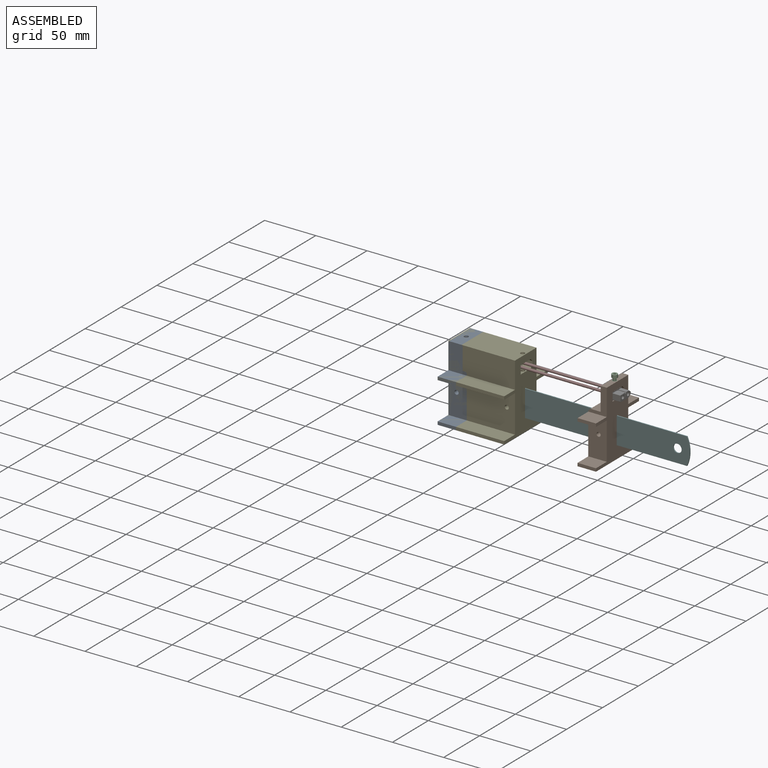
[diagram: assembled view]
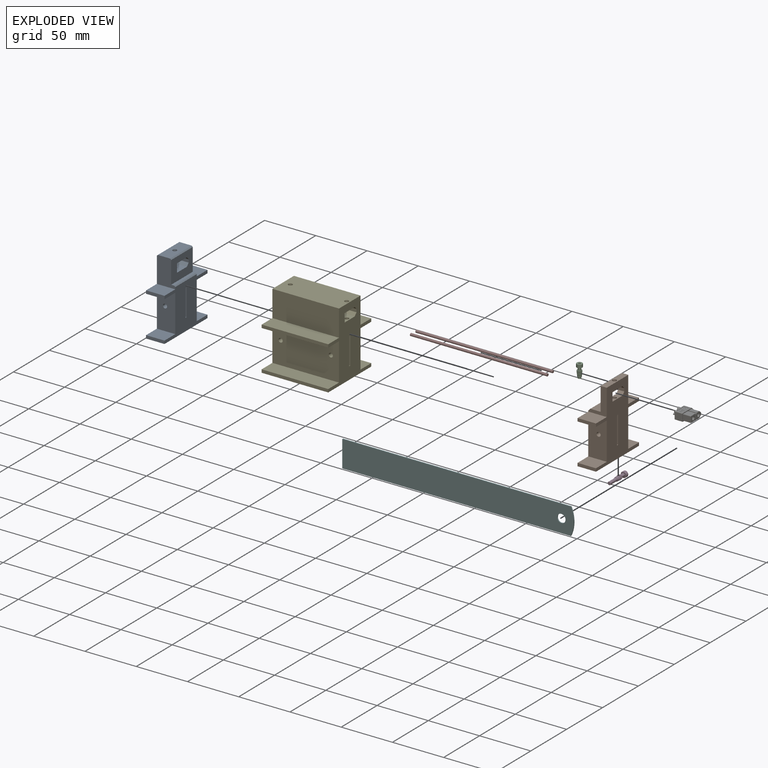
[diagram: exploded view]
GUIDED TOUR — FREECAD ASSEMBLY "outillageXT_v2_014"

This assembly has 8 components, labeled P0..P7 below (a component is one placed body or linked part; the same part can appear more than once), held together by 0 modeled joints plus 11 derived contact edges. A joint is a constraint between two components; its type names the relative motion it leaves free:
  CONTACT — a derived adjacency edge — the two components touch in the source model (clearance under 2% of the assembly's diagonal); it is measured from the geometry, not a modeled constraint.
Axis/direction vectors are unit vectors and 'through' points are millimeter coordinates, both in the assembly's world frame.

MATES
  1. CONTACT "contact_0_4": P0 <-> P4, contact direction (1.000, 0.000, 0.000) through (0.00, -15.00, 42.50) mm (derived from contact, not a modeled constraint)
  2. CONTACT "contact_0_5": P0 <-> P5, contact direction (0.000, 0.000, -1.000) through (0.00, -0.90, 38.45) mm (derived from contact, not a modeled constraint)
  3. CONTACT "contact_0_7": P0 <-> P7, contact direction (0.000, 0.000, 1.000) through (13.70, 6.32, 54.43) mm (derived from contact, not a modeled constraint)
  4. CONTACT "contact_1_2": P1 <-> P2, contact direction (0.000, 0.000, 1.000) through (151.65, 2.00, 68.30) mm (derived from contact, not a modeled constraint)
  5. CONTACT "contact_1_3": P1 <-> P3, contact direction (0.000, 0.000, -1.000) through (146.96, 15.00, 26.96) mm (derived from contact, not a modeled constraint)
  6. CONTACT "contact_1_6": P1 <-> P6, contact direction (0.000, 0.000, 1.000) through (149.60, 0.01, 53.28) mm (derived from contact, not a modeled constraint)
  7. CONTACT "contact_1_7": P1 <-> P7, contact direction (-1.000, 0.000, 0.000) through (147.81, 6.32, 54.43) mm (derived from contact, not a modeled constraint)
  8. CONTACT "contact_2_6": P2 <-> P6, contact direction (0.000, 0.000, -1.000) through (150.42, -0.82, 60.92) mm (derived from contact, not a modeled constraint)
  9. CONTACT "contact_2_7": P2 <-> P7, contact direction (0.000, 0.000, -1.000) through (148.71, -1.22, 59.68) mm (derived from contact, not a modeled constraint)
  10. CONTACT "contact_4_5": P4 <-> P5, contact direction (0.000, 0.000, -1.000) through (0.00, -0.90, 38.45) mm (derived from contact, not a modeled constraint)
  11. CONTACT "contact_6_7": P6 <-> P7, contact direction (-1.000, 0.000, 0.000) through (146.51, 5.59, 58.18) mm (derived from contact, not a modeled constraint)

ASSEMBLY ORDER
  1. P1 — the base component [order heuristic]
  2. P3 — core [order heuristic]
  3. P6 — core [order heuristic]
  4. P7 — core [order heuristic]
  5. P2 [order verified]
  6. P4 [order verified]
  7. P0 [order verified]
  8. P5 [order verified]
(P2 verified with a relaxed clearance tolerance: the source model stores slight part interference there.)
Order-tag legend:
  [order verified] — this step's position reverses a verified removal order: the component was checked to insert without passing through the ones already placed.
  [order heuristic] — the first 4 components form the assembly's core: parts whose collision-free extraction could not be verified, listed in mate-graph order.

Of the 8 components, 8 carry a construction recipe — the FreeCAD feature program (sketches with constraints, then the solid features that consume them) that regenerates the part from scratch, quoted from this document or from the linked companion document it references; the rest are supplied as boundary geometry only. The tour below walks the components in assembly order: each is shown spotlighted twice — in the assembled view, then in the exploded view, where a leader line traces a displaced component back to its assembled socket (components that stay in place when exploded have no leader line; saturated green if recipe-attached, orange if geometry-only; every other component desaturated gray) — followed by its recipe or geometry summary and the mates that hold it.
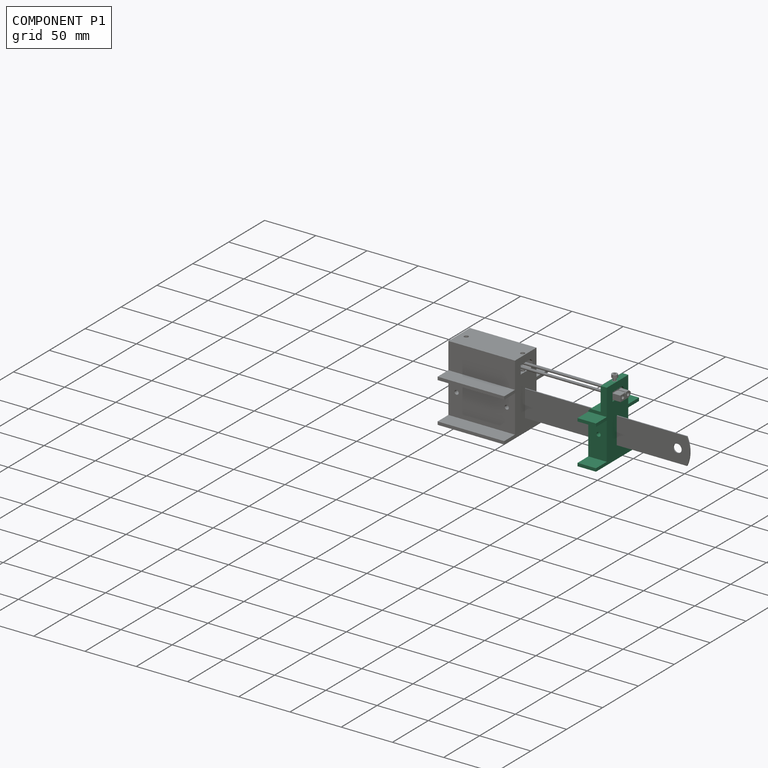
[diagram: component P1 — assembled]
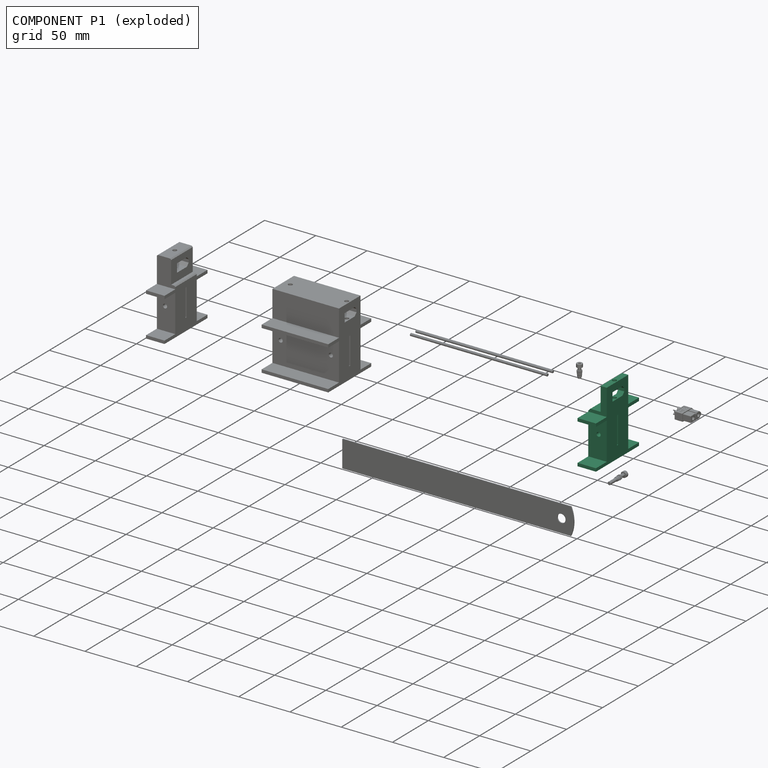
[diagram: component P1 — exploded]
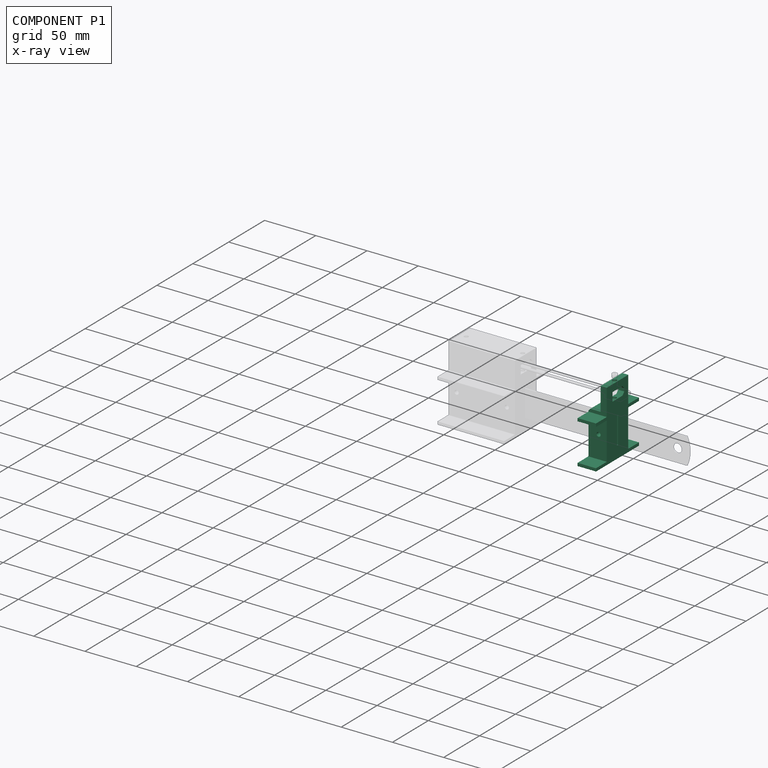
[diagram: component P1 — x-ray view]
COMPONENT P1 — recipe-attached ("outillageMale", modeled in this document).
Held by: resting contact with P2 (derived edge); resting contact with P3 (derived edge); resting contact with P6 (derived edge); resting contact with P7 (derived edge).
Construction recipe (the document's own serialized feature program — sketch geometry with constraints, then the solid features built on it; lengths are millimeters unless a unit is written):

FEATURE [PartDesign::FeatureBase] Clone001
  BaseFeature = -> Slice_child2
FEATURE [PartDesign::Chamfer] Chamfer002
  Angle = 45
  Base = -> Clone001 [Edge5]
  BaseFeature = -> Clone001
  ChamferType = 0
  FlipDirection = false
  Size = 2
  Size2 = 1
  SupportTransform = false
FEATURE [PartDesign::Body] Body005  label="outillageMale"
  BaseFeature = -> Slice_child2
  Group = -> [Clone001,Chamfer002]
  Origin = -> Origin010
  Placement = pos=(89.6,0,0) rot=(0,0,1;0rad)
  Tip = -> Chamfer002
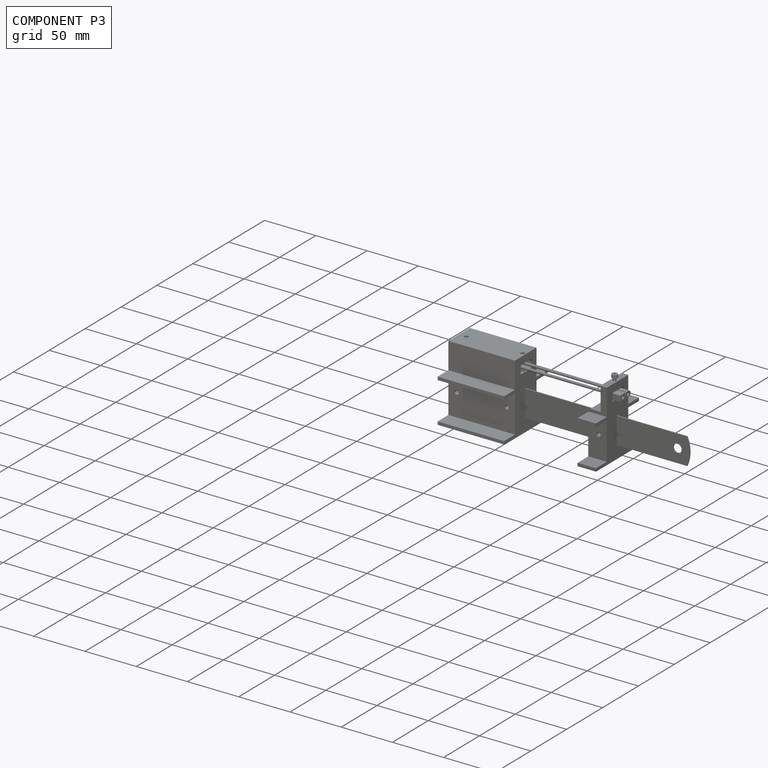
[diagram: component P3 — assembled]
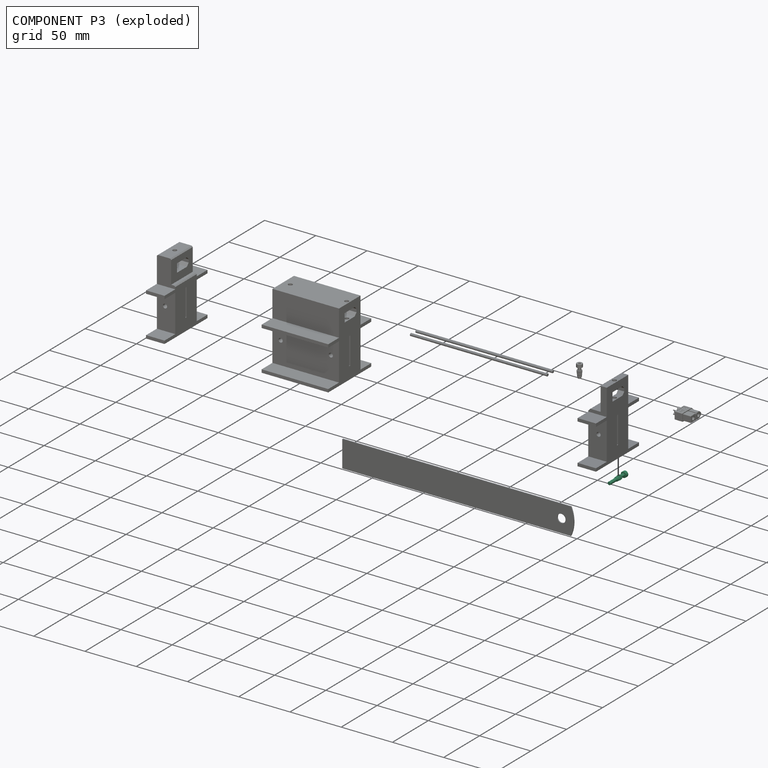
[diagram: component P3 — exploded]
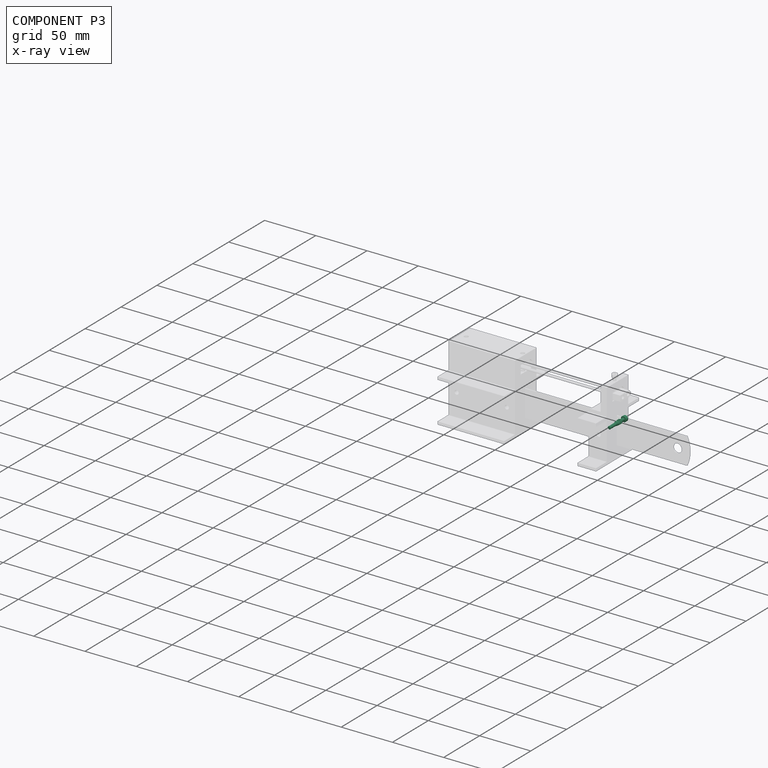
[diagram: component P3 — x-ray view]
COMPONENT P3 — recipe-attached ("visM2x20Insert001", modeled in this document).
Held by: resting contact with P1 (derived edge).
Construction recipe (the document's own serialized feature program — sketch geometry with constraints, then the solid features built on it; lengths are millimeters unless a unit is written):

FEATURE [Sketcher::SketchObject] Sketch006
  FullyConstrained = false
  MapMode = 5
  Support = -> [XY_Plane010]
  sketch-geometry (1):
    g0: Circle CenterX=0 CenterY=0 CenterZ=0 NormalX=0 NormalY=0 NormalZ=1 AngleXU=0 Radius=2.75
  constraints (2):
    c: Coincident(g0,g-1)
    c: Diameter(g0) = 5.5
FEATURE [PartDesign::Pad] Pad003  label="tete"
  AllowMultiFace = false
  Direction = (1,1,1)
  Length = 3
  Length2 = 100
  Profile = -> Sketch006
  Type = 0
FEATURE [Sketcher::SketchObject] Sketch007
  FullyConstrained = false
  MapMode = 5
  Placement = pos=(0,0,0) rot=(1,0,0;3.14159rad)
  Support = -> [Pad003]
  sketch-geometry (1):
    g0: Circle CenterX=0 CenterY=0 CenterZ=0 NormalX=0 NormalY=0 NormalZ=1 AngleXU=0 Radius=1.5
  constraints (2):
    c: Coincident(g0,g-1)
    c: Diameter(g0) = 3
FEATURE [PartDesign::Pad] Pad004  label="corps"
  AllowMultiFace = false
  BaseFeature = -> Pad003
  Direction = (1,1,1)
  Length = 20
  Length2 = 100
  Profile = -> Sketch007
  Type = 0
FEATURE [PartDesign::Plane] DatumPlane003  label="DatumPlane"
  AttachmentOffset = pos=(0,0,3) rot=(0,0,1;0rad)
  Length = 60
  MapMode = 5
  Placement = pos=(0,0,3) rot=(0,0,1;0rad)
  ResizeMode = 0
  Support = -> [XY_Plane010]
  Width = 60
FEATURE [Sketcher::SketchObject] Sketch008
  FullyConstrained = false
  MapMode = 5
  Placement = pos=(0,0,3) rot=(0,0,1;0rad)
  Support = -> [DatumPlane003]
  sketch-geometry (7):
    g0: LineSegment StartX=0.721688 StartY=-1.25 StartZ=0 EndX=1.44338 EndY=1.0119e-12 EndZ=0
    g1: LineSegment StartX=1.44338 StartY=1.0119e-12 StartZ=0 EndX=0.721688 EndY=1.25 EndZ=0
    g2: LineSegment StartX=0.721688 StartY=1.25 StartZ=0 EndX=-0.721688 EndY=1.25 EndZ=0
    g3: LineSegment StartX=-0.721688 StartY=1.25 StartZ=0 EndX=-1.44338 EndY=8.689e-13 EndZ=0
    g4: LineSegment StartX=-1.44338 StartY=8.689e-13 StartZ=0 EndX=-0.721688 EndY=-1.25 EndZ=0
    g5: LineSegment StartX=-0.721688 StartY=-1.25 StartZ=0 EndX=0.721688 EndY=-1.25 EndZ=0
    g6: Circle CenterX=0 CenterY=0 CenterZ=0 NormalX=0 NormalY=0 NormalZ=1 AngleXU=0 Radius=1.44338
  constraints (16):
    c: Coincident(g0,g1)
    c: Coincident(g1,g2)
    c: Coincident(g2,g3)
    c: Coincident(g3,g4)
    c: Coincident(g4,g5)
    c: Coincident(g5,g0)
    c: Equal(g0, g1-g5) x5
    c: PointOnObject(g0,g6)
    c: PointOnObject(g1,g6)
    c: PointOnObject(g2,g6)
    c: PointOnObject(g3,g6)
    c: PointOnObject(g4,g6)
    c: PointOnObject(g5,g6)
    c: Coincident(g6,g-1)
    c: Horizontal(g2)
    c: DistanceY(g0,g1) = 2.5
FEATURE [PartDesign::Pocket] Pocket002  label="emprunte"
  AllowMultiFace = false
  BaseFeature = -> Pad004
  Length = 4
  Length2 = 100
  Profile = -> Sketch008
  Type = 0
FEATURE [PartDesign::Chamfer] Chamfer004
  Angle = 45
  Base = -> Pocket002 [Edge12,Edge2,Edge3]
  BaseFeature = -> Pocket002
  ChamferType = 0
  FlipDirection = false
  Size = 0.2
  Size2 = 1
  SupportTransform = false
FEATURE [PartDesign::Body] Body006  label="visTHCM3x20_001"
  Group = -> [Sketch006,Pad003,Sketch007,Pad004,DatumPlane003,Sketch008,Pocket002,Chamfer004]
  Origin = -> Origin011
  Tip = -> Chamfer004
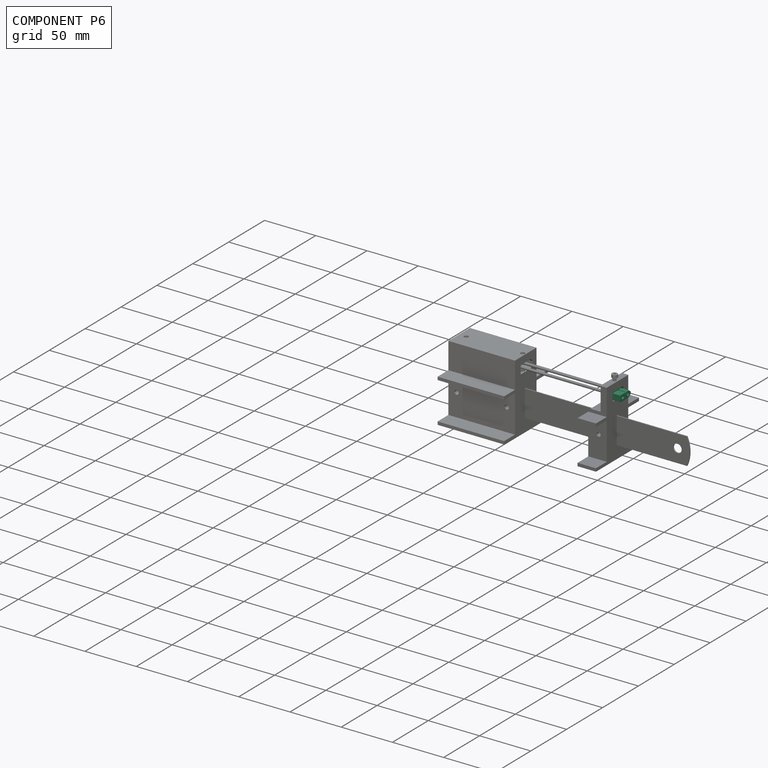
[diagram: component P6 — assembled]
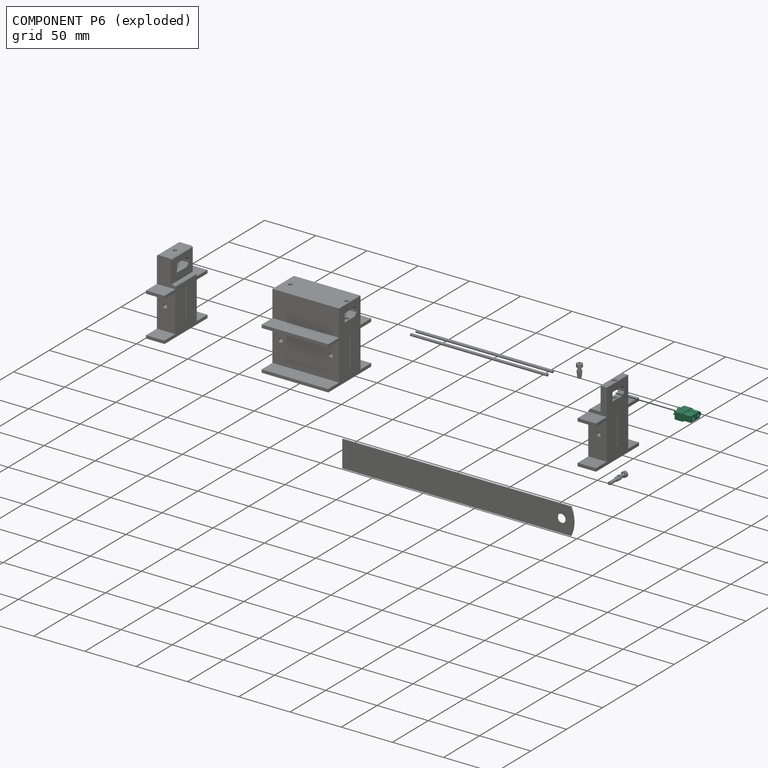
[diagram: component P6 — exploded]
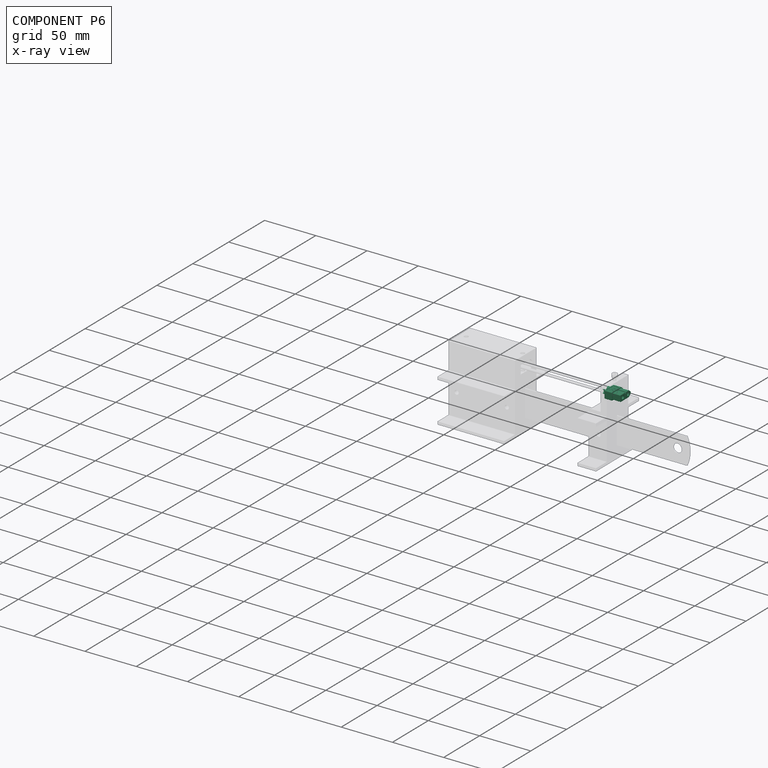
[diagram: component P6 — x-ray view]
COMPONENT P6 — recipe-attached ("xt", modeled in this document).
Held by: resting contact with P1 (derived edge); resting contact with P2 (derived edge); resting contact with P7 (derived edge).
Construction recipe (the document's own serialized feature program — sketch geometry with constraints, then the solid features built on it; lengths are millimeters unless a unit is written):

FEATURE [Sketcher::SketchObject] Sketch001
  FullyConstrained = true
  MapMode = 5
  Placement = pos=(0,0,0) rot=(1,0,0;1.5708rad)
  Support = -> [XZ_Plane005]
  expr: Constraints[16] = <<xtSp>>.fetierLarg
  expr: Constraints[17] = <<xtSp>>.toitHaut
  expr: Constraints[14] = <<xtSp>>.haut
  expr: Constraints[13] = <<xtSp>>.base
  sketch-geometry (7):
    g0: LineSegment StartX=-4.15 StartY=0 StartZ=0 EndX=-4.15 EndY=13.25 EndZ=0
    g1: LineSegment StartX=-4.15 StartY=13.25 StartZ=0 EndX=-1.5 EndY=15.75 EndZ=0
    g2: LineSegment StartX=-1.5 StartY=15.75 StartZ=0 EndX=1.5 EndY=15.75 EndZ=0
    g3: LineSegment StartX=1.5 StartY=15.75 StartZ=0 EndX=4.15 EndY=13.25 EndZ=0
    g4: LineSegment StartX=4.15 StartY=13.25 StartZ=0 EndX=4.15 EndY=0 EndZ=0
    g5: LineSegment StartX=4.15 StartY=0 StartZ=0 EndX=-4.15 EndY=0 EndZ=0
    g6: LineSegment StartX=-4.15 StartY=13.25 StartZ=0 EndX=4.15 EndY=13.25 EndZ=0
  constraints (18):
    c: PointOnObject(g0,g-1)
    c: Vertical(g0)
    c: Coincident(g0,g1)
    c: Coincident(g1,g2)
    c: Coincident(g2,g3)
    c: Coincident(g3,g4)
    c: Vertical(g4)
    c: Coincident(g4,g5)
    c: Coincident(g5,g0)
    c: Symmetric(g0,g4,g-2)
    c: Coincident(g6,g0)
    c: Coincident(g6,g3)
    c: Horizontal(g6)
    c: DistanceX(g5,g5) = 8.3
    c: DistanceY(g4,g4) = 13.25
    c: Symmetric(g1,g2,g-2)
    c: DistanceX(g2,g2) = 3
    c: DistanceY(g0,g1) = 2.5
FEATURE [PartDesign::Body] Body002
  Group = -> [Sketch001]
  Origin = -> Origin005
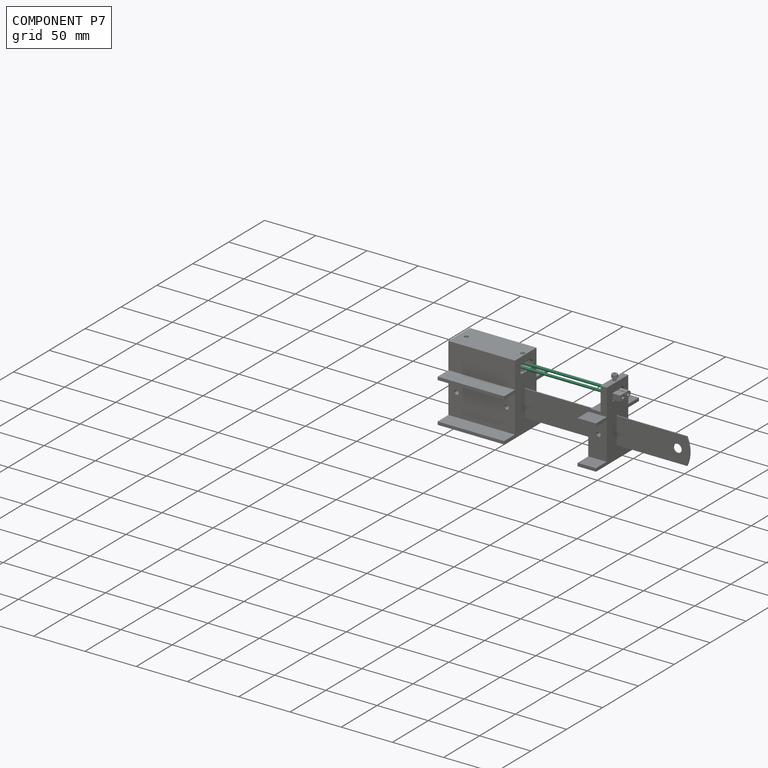
[diagram: component P7 — assembled]
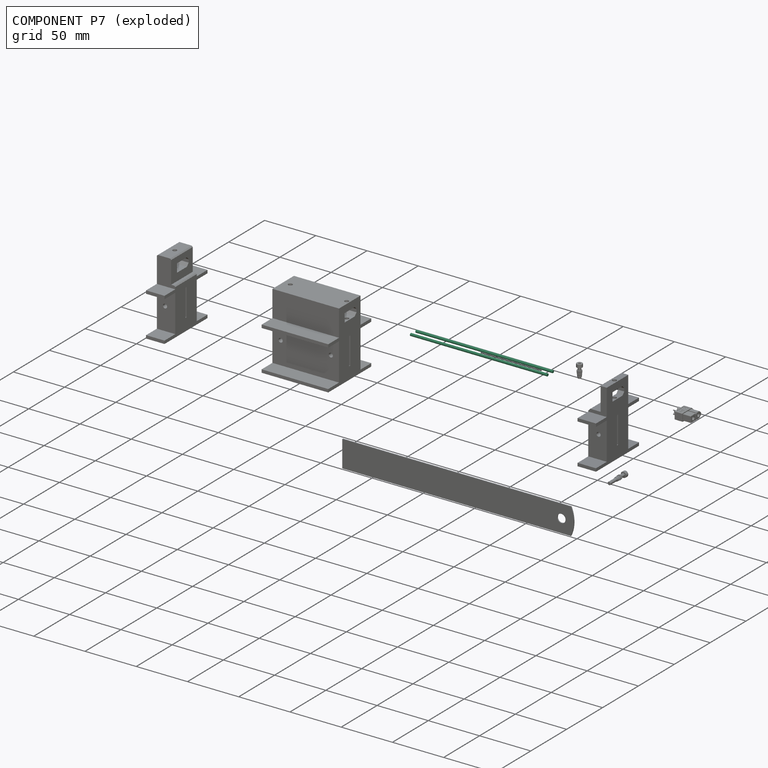
[diagram: component P7 — exploded]
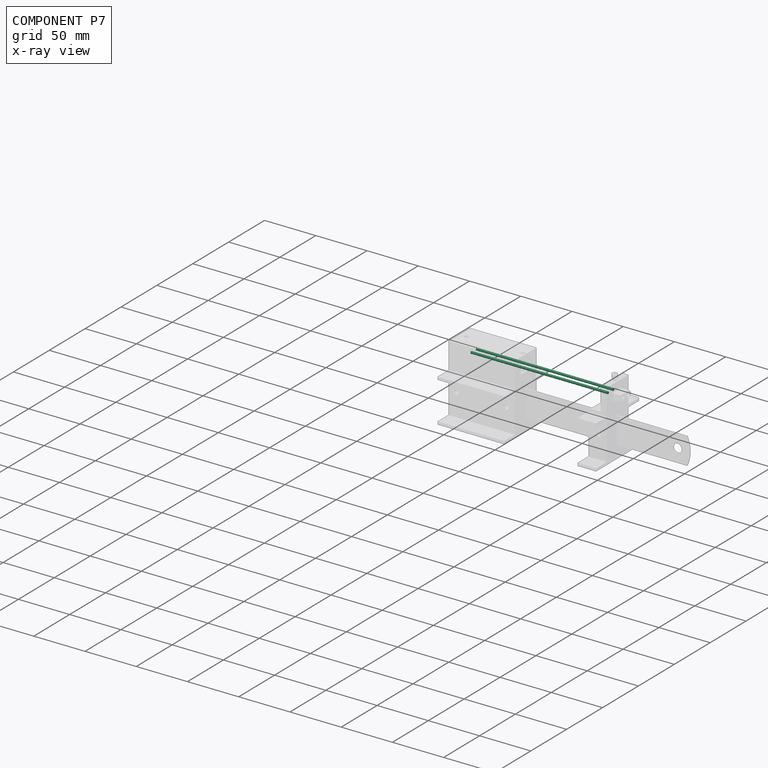
[diagram: component P7 — x-ray view]
COMPONENT P7 — recipe-attached ("tigeLaiton001", modeled in this document).
Held by: resting contact with P0 (derived edge); resting contact with P1 (derived edge); resting contact with P2 (derived edge); resting contact with P6 (derived edge).
Construction recipe (the document's own serialized feature program — sketch geometry with constraints, then the solid features built on it; lengths are millimeters unless a unit is written):

FEATURE [PartDesign::Plane] DatumPlane012  label="planBaseTige"
  AttachmentOffset = pos=(0,0,-5.18) rot=(0,0,1;0rad)
  Length = 60
  MapMode = 5
  Placement = pos=(-5.18,1.2e-15,-1.2e-15) rot=(0.57735,0.57735,0.57735;2.0944rad)
  ResizeMode = 0
  Support = -> [YZ_Plane015]
  Width = 60
  expr: .AttachmentOffset.Base.z = -<<tige>>.planBaseTigeposX
FEATURE [Sketcher::SketchObject] Sketch032  label="sk_tiges"
  FullyConstrained = true
  MapMode = 5
  Placement = pos=(-5.18,1.2e-15,-1.2e-15) rot=(0.57735,0.57735,0.57735;2.0944rad)
  Support = -> [DatumPlane012]
  expr: Constraints[2] = <<tige>>.tigePosX
  expr: Constraints[1] = <<tige>>.tigePosY
  expr: Constraints[0] = <<tige>>.tigeDiam
  sketch-geometry (1):
    g0: Circle CenterX=-14 CenterY=14.3 CenterZ=0 NormalX=0 NormalY=0 NormalZ=1 AngleXU=0 Radius=1.25
  constraints (3):
    c: Diameter(g0) = 2.5
    c: DistanceY(g-1,g0) = 14.3
    c: DistanceX(g0,g-1) = 14
FEATURE [PartDesign::Pad] Pad017  label="tigeBasse"
  AllowMultiFace = false
  Direction = (1,1,1)
  Length = 133.62
  Length2 = 100
  Placement = pos=(-5.18,1e-15,-1e-15) rot=(0.57735,0.57735,0.57735;2.0944rad)
  Profile = -> Sketch032
  Reversed = true
  Type = 0
  expr: Length = <<tige>>.tigeLong
FEATURE [PartDesign::Body] Body007  label="tigeLaiton"
  Group = -> [DatumPlane012,Sketch032,Pad017]
  Origin = -> Origin018
  Tip = -> Pad017
FEATURE [PartDesign::Plane] DatumPlane013  label="planTige2"
  AttachmentOffset = pos=(0,0,-5.18) rot=(0,0,1;0rad)
  Length = 60
  MapMode = 5
  Placement = pos=(-5.18,1.2e-15,-1.2e-15) rot=(0.57735,0.57735,0.57735;2.0944rad)
  ResizeMode = 0
  Support = -> [YZ_Plane017]
  Width = 60
  expr: .AttachmentOffset.Base.z = -<<tige>>.planBaseTigeposX
FEATURE [Sketcher::SketchObject] Sketch033  label="sk_tige2"
  FullyConstrained = true
  MapMode = 5
  Placement = pos=(-5.18,1.2e-15,-1.2e-15) rot=(0.57735,0.57735,0.57735;2.0944rad)
  Support = -> [DatumPlane013]
  expr: Constraints[2] = <<tige>>.tigePosY + <<tige>>.xtEcartBroches
  expr: Constraints[1] = <<tige>>.tigePosX
  expr: Constraints[0] = <<tige>>.tigeDiam
  sketch-geometry (1):
    g0: Circle CenterX=-14 CenterY=21.86 CenterZ=0 NormalX=0 NormalY=0 NormalZ=1 AngleXU=0 Radius=1.25
  constraints (3):
    c: Diameter(g0) = 2.5
    c: DistanceX(g0,g-1) = 14
    c: DistanceY(g-1,g0) = 21.86
FEATURE [PartDesign::Pad] Pad018
  AllowMultiFace = false
  Direction = (1,1,1)
  Length = 133.62
  Length2 = 100
  Placement = pos=(-5.18,1e-15,-1e-15) rot=(0.57735,0.57735,0.57735;2.0944rad)
  Profile = -> Sketch033
  Reversed = true
  Type = 0
  expr: Length = <<tige>>.tigeLong
FEATURE [PartDesign::Body] Body009  label="tige2"
  Group = -> [DatumPlane013,Sketch033,Pad018]
  Origin = -> Origin020
  Tip = -> Pad018
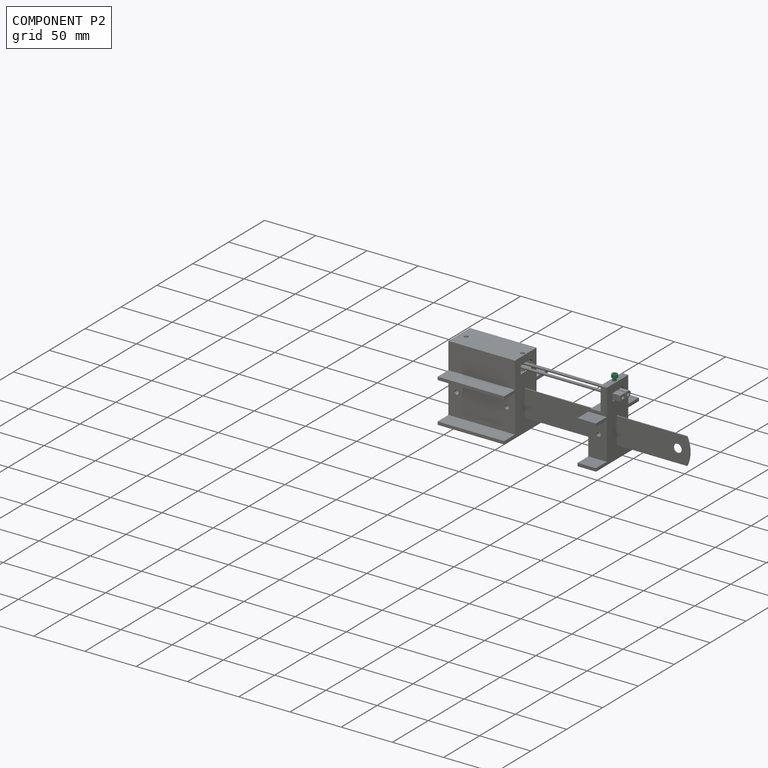
[diagram: component P2 — assembled]
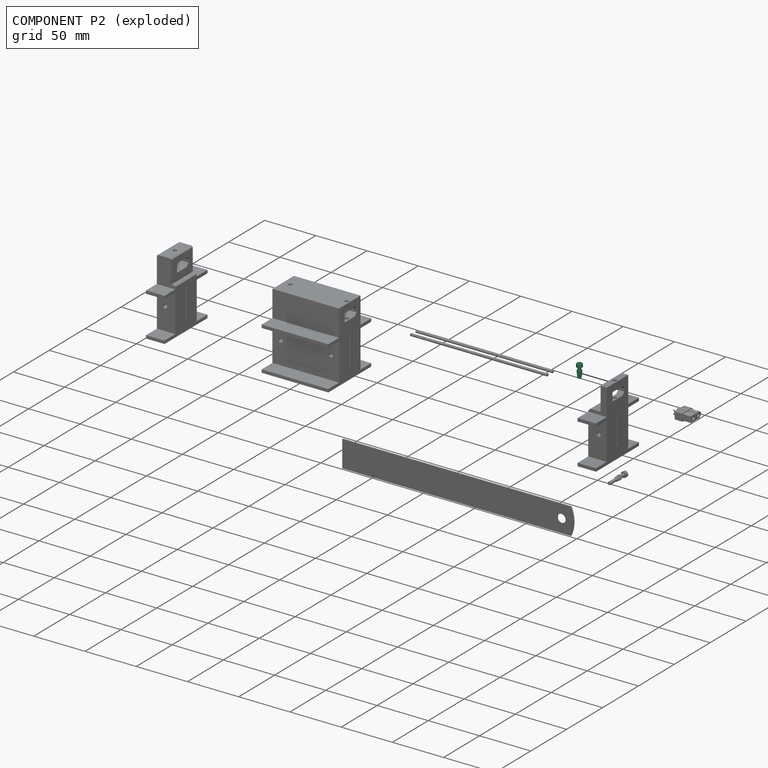
[diagram: component P2 — exploded]
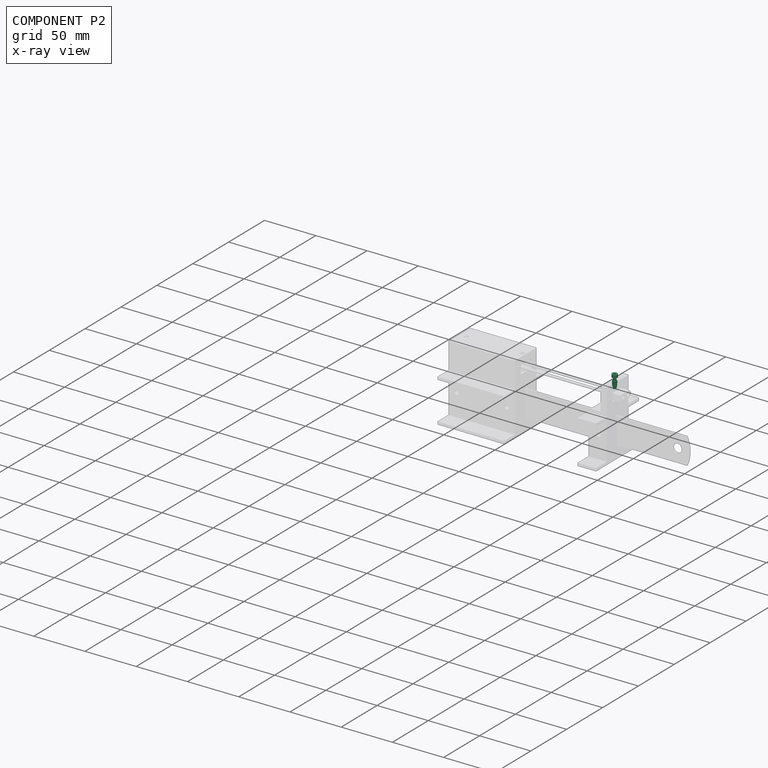
[diagram: component P2 — x-ray view]
COMPONENT P2 — recipe-attached ("visM3x10Insert__002", modeled in this document).
Held by: resting contact with P1 (derived edge); resting contact with P6 (derived edge); resting contact with P7 (derived edge).
Construction recipe (the document's own serialized feature program — sketch geometry with constraints, then the solid features built on it; lengths are millimeters unless a unit is written):

FEATURE [Sketcher::SketchObject] Sketch012
  FullyConstrained = false
  MapMode = 5
  Support = -> [XY_Plane013]
  sketch-geometry (1):
    g0: Circle CenterX=0 CenterY=0 CenterZ=0 NormalX=0 NormalY=0 NormalZ=1 AngleXU=0 Radius=2.75
  constraints (2):
    c: Coincident(g0,g-1)
    c: Diameter(g0) = 5.5
FEATURE [PartDesign::Pad] Pad007  label="tete002"
  AllowMultiFace = false
  Direction = (1,1,1)
  Length = 3
  Length2 = 100
  Profile = -> Sketch012
  Type = 0
FEATURE [Sketcher::SketchObject] Sketch013
  FullyConstrained = false
  MapMode = 5
  Placement = pos=(0,0,0) rot=(1,0,0;3.14159rad)
  Support = -> [Pad007]
  sketch-geometry (1):
    g0: Circle CenterX=0 CenterY=0 CenterZ=0 NormalX=0 NormalY=0 NormalZ=1 AngleXU=0 Radius=1.5
  constraints (2):
    c: Coincident(g0,g-1)
    c: Diameter(g0) = 3
FEATURE [PartDesign::Pad] Pad008  label="corps002"
  AllowMultiFace = false
  BaseFeature = -> Pad007
  Direction = (1,1,1)
  Length = 10
  Length2 = 100
  Profile = -> Sketch013
  Type = 0
FEATURE [PartDesign::Plane] DatumPlane005
  AttachmentOffset = pos=(0,0,3) rot=(0,0,1;0rad)
  Length = 60
  MapMode = 5
  Placement = pos=(0,0,3) rot=(0,0,1;0rad)
  ResizeMode = 0
  Support = -> [XY_Plane013]
  Width = 60
FEATURE [Sketcher::SketchObject] Sketch014
  FullyConstrained = false
  MapMode = 5
  Placement = pos=(0,0,3) rot=(0,0,1;0rad)
  Support = -> [DatumPlane005]
  sketch-geometry (7):
    g0: LineSegment StartX=0.721688 StartY=-1.25 StartZ=0 EndX=1.44338 EndY=1.0119e-12 EndZ=0
    g1: LineSegment StartX=1.44338 StartY=1.0119e-12 StartZ=0 EndX=0.721688 EndY=1.25 EndZ=0
    g2: LineSegment StartX=0.721688 StartY=1.25 StartZ=0 EndX=-0.721688 EndY=1.25 EndZ=0
    g3: LineSegment StartX=-0.721688 StartY=1.25 StartZ=0 EndX=-1.44338 EndY=8.689e-13 EndZ=0
    g4: LineSegment StartX=-1.44338 StartY=8.689e-13 StartZ=0 EndX=-0.721688 EndY=-1.25 EndZ=0
    g5: LineSegment StartX=-0.721688 StartY=-1.25 StartZ=0 EndX=0.721688 EndY=-1.25 EndZ=0
    g6: Circle CenterX=0 CenterY=0 CenterZ=0 NormalX=0 NormalY=0 NormalZ=1 AngleXU=0 Radius=1.44338
  constraints (16):
    c: Coincident(g0,g1)
    c: Coincident(g1,g2)
    c: Coincident(g2,g3)
    c: Coincident(g3,g4)
    c: Coincident(g4,g5)
    c: Coincident(g5,g0)
    c: Equal(g0, g1-g5) x5
    c: PointOnObject(g0,g6)
    c: PointOnObject(g1,g6)
    c: PointOnObject(g2,g6)
    c: PointOnObject(g3,g6)
    c: PointOnObject(g4,g6)
    c: PointOnObject(g5,g6)
    c: Coincident(g6,g-1)
    c: Horizontal(g2)
    c: DistanceY(g0,g1) = 2.5
FEATURE [PartDesign::Pocket] Pocket004  label="emprunte002"
  AllowMultiFace = false
  BaseFeature = -> Pad008
  Length = 4
  Length2 = 100
  Profile = -> Sketch014
  Type = 0
FEATURE [PartDesign::Body] Body008  label="visTHCM3x10"
  Group = -> [Sketch012,Pad007,Sketch013,Pad008,DatumPlane005,Sketch014,Pocket004]
  Origin = -> Origin015
  Tip = -> Pocket004
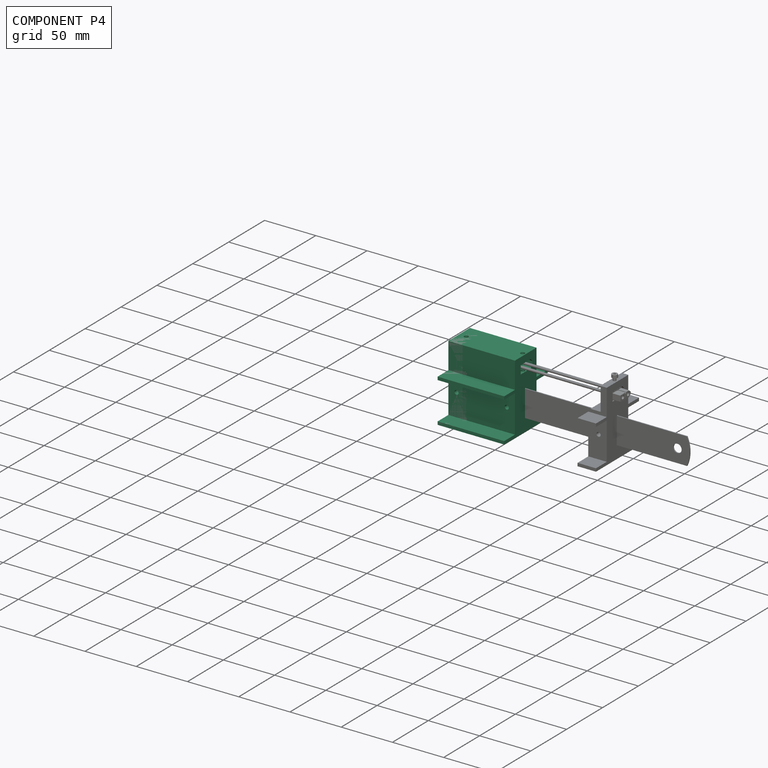
[diagram: component P4 — assembled]
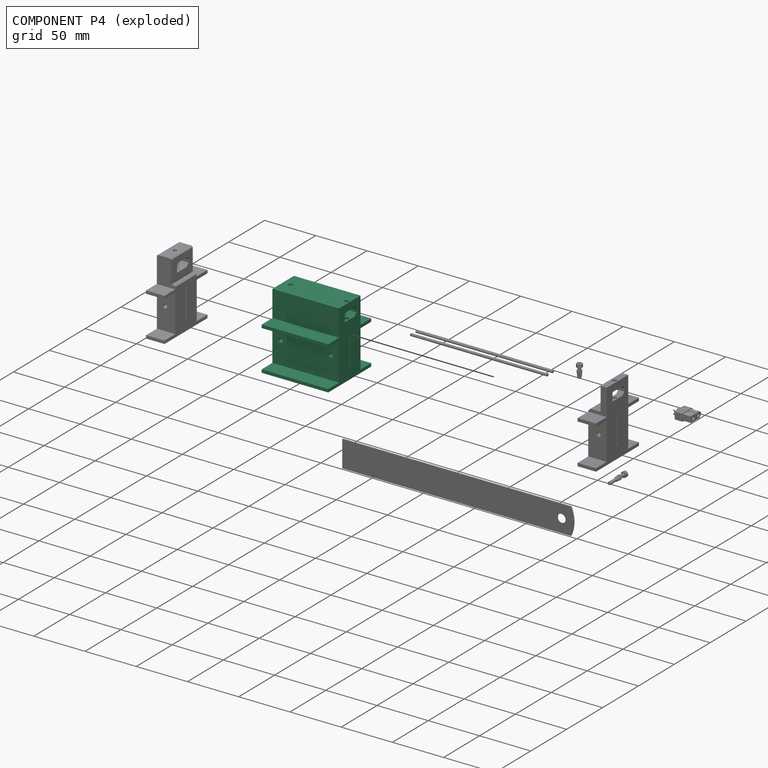
[diagram: component P4 — exploded]
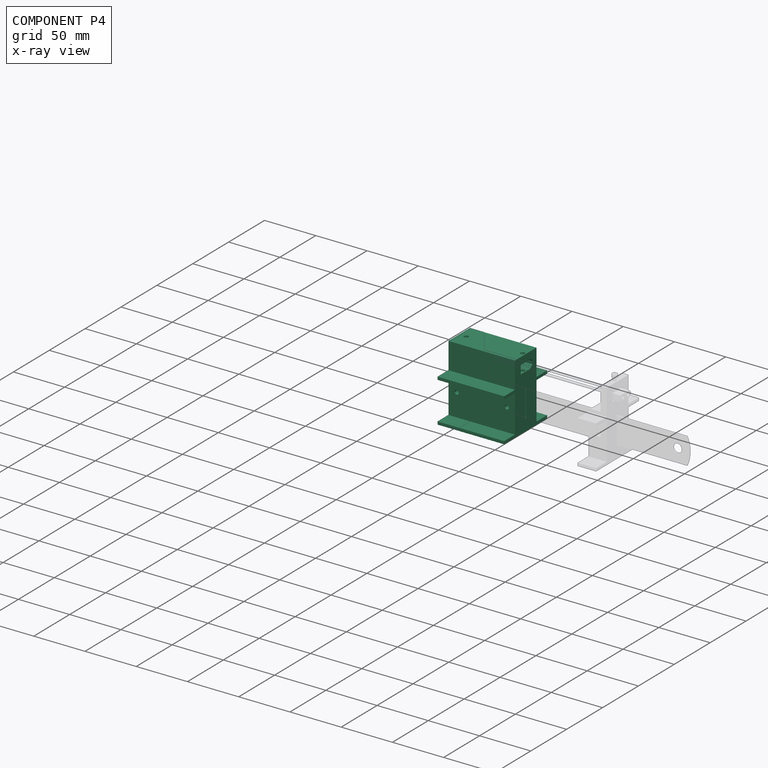
[diagram: component P4 — x-ray view]
COMPONENT P4 — recipe-attached ("outillageXt", modeled in this document).
Held by: resting contact with P0 (derived edge); resting contact with P5 (derived edge).
Construction recipe (the document's own serialized feature program — sketch geometry with constraints, then the solid features built on it; lengths are millimeters unless a unit is written):

FEATURE [Sketcher::SketchObject] Sketch002
  FullyConstrained = true
  MapMode = 5
  Placement = pos=(0,0,0) rot=(0.57735,0.57735,0.57735;2.0944rad)
  Support = -> [YZ_Plane]
  expr: Constraints[19] = <<outillageXtSp>>.ep
  expr: Constraints[21] = <<outillageXtSp>>.piedEp
  expr: Constraints[30] = <<regletSp>>.ep + <<outillageXtSp>>.jeuFonct
  expr: Constraints[31] = <<outillageXtSp>>.reglettePosVert
  expr: Constraints[44] = <<xtSp>>.base
  expr: Constraints[48] = <<xtSp>>.fetierLarg
  expr: Constraints[52] = <<outillageXtSp>>.xtPosVert
  expr: Constraints[46] = <<xtSp>>.haut + <<outillageXtSp>>.jeuFonct
  expr: Constraints[70] = <<outillageXtSp>>.piedEp
  expr: Constraints[29] = <<regletSp>>.larg + <<outillageXtSp>>.jeuFonct
  expr: Constraints[47] = <<xtSp>>.toitHaut
  expr: Constraints[20] = <<outillageXtSp>>.piedLong
  expr: Constraints[33] = <<outillageXtSp>>.hauteurTotale
  expr: Constraints[71] = <<outillageXtSp>>.reglettePosVert + <<regletSp>>.larg + <<outillageXtSp>>.xtRegletDist / 2 - 3
  sketch-geometry (28):
    g0: LineSegment StartX=30 StartY=0 StartZ=0 EndX=-30 EndY=0 EndZ=0
    g1: LineSegment StartX=-30 StartY=0 StartZ=0 EndX=-30 EndY=3 EndZ=0
    g2: LineSegment StartX=-30 StartY=3 StartZ=0 EndX=-15 EndY=3 EndZ=0
    g3: LineSegment StartX=-15 StartY=3 StartZ=0 EndX=-15 EndY=39.5 EndZ=0
    g4: LineSegment StartX=30 StartY=0 StartZ=0 EndX=30 EndY=3 EndZ=0
    g5: LineSegment StartX=30 StartY=3 StartZ=0 EndX=15 EndY=3 EndZ=0
    g6: LineSegment StartX=15 StartY=3 StartZ=0 EndX=15 EndY=39.5 EndZ=0
    g7: LineSegment StartX=-15 StartY=68.3 StartZ=0 EndX=15 EndY=68.3 EndZ=0
    g8: LineSegment StartX=0.8 StartY=38.6 StartZ=0 EndX=-0.8 EndY=38.6 EndZ=0
    g9: LineSegment StartX=-0.8 StartY=38.6 StartZ=0 EndX=-0.8 EndY=12 EndZ=0
    g10: LineSegment StartX=-0.8 StartY=12 StartZ=0 EndX=0.8 EndY=12 EndZ=0
    g11: LineSegment StartX=0.8 StartY=12 StartZ=0 EndX=0.8 EndY=38.6 EndZ=0
    g12: LineSegment StartX=-6.925 StartY=53 StartZ=0 EndX=6.925 EndY=53 EndZ=0
    g13: LineSegment StartX=6.925 StartY=53 StartZ=0 EndX=9.425 EndY=55.65 EndZ=0
    g14: LineSegment StartX=9.425 StartY=55.65 StartZ=0 EndX=9.425 EndY=58.65 EndZ=0
    g15: LineSegment StartX=9.425 StartY=58.65 StartZ=0 EndX=6.925 EndY=61.3 EndZ=0
    g16: LineSegment StartX=6.925 StartY=61.3 StartZ=0 EndX=-6.925 EndY=61.3 EndZ=0
    g17: LineSegment StartX=-6.925 StartY=61.3 StartZ=0 EndX=-6.925 EndY=53 EndZ=0
    g18: LineSegment StartX=0 StartY=0 StartZ=0 EndX=0 EndY=53 EndZ=0
    g19: LineSegment StartX=-6.925 StartY=57.15 StartZ=0 EndX=9.425 EndY=57.15 EndZ=0
    g20: LineSegment StartX=-15 StartY=42.5 StartZ=0 EndX=-30 EndY=42.5 EndZ=0
    g21: LineSegment StartX=-30 StartY=42.5 StartZ=0 EndX=-30 EndY=39.5 EndZ=0
    g22: LineSegment StartX=-30 StartY=39.5 StartZ=0 EndX=-15 EndY=39.5 EndZ=0
    g23: LineSegment StartX=15 StartY=42.5 StartZ=0 EndX=30 EndY=42.5 EndZ=0
    g24: LineSegment StartX=30 StartY=42.5 StartZ=0 EndX=30 EndY=39.5 EndZ=0
    g25: LineSegment StartX=30 StartY=39.5 StartZ=0 EndX=15 EndY=39.5 EndZ=0
    g26: LineSegment StartX=15 StartY=42.5 StartZ=0 EndX=15 EndY=68.3 EndZ=0
    g27: LineSegment StartX=-15 StartY=42.5 StartZ=0 EndX=-15 EndY=68.3 EndZ=0
  constraints (78):
    c: PointOnObject(g0,g-1)
    c: PointOnObject(g0,g-1)
    c: Coincident(g0,g1)
    c: Vertical(g1)
    c: Coincident(g1,g2)
    c: Horizontal(g2)
    c: Coincident(g2,g3)
    c: Vertical(g3)
    c: Coincident(g0,g4)
    c: Coincident(g4,g5)
    c: Horizontal(g5)
    c: Coincident(g5,g6)
    c: Vertical(g6)
    c: Symmetric(g2,g5,g-2)
    c: Vertical(g4)
    c: Equal(g2,g5)
    c: Coincident(g7,g27)
    c: Coincident(g7,g26)
    c: Horizontal(g7)
    c: DistanceX(g2,g5) = 30
    c: DistanceX(g2,g2) = 15
    c: DistanceY(g1,g1) = 3
    c: Coincident(g8,g9)
    c: Coincident(g9,g10)
    c: Coincident(g10,g11)
    c: Coincident(g11,g8)
    c: Horizontal(g10)
    c: Vertical(g9)
    c: Vertical(g11)
    c: DistanceY(g9,g9) = 26.6
    c: DistanceX(g10,g10) = 1.6
    c: DistanceY(g-1,g10) = 12
    c: Symmetric(g8,g8,g-2)
    c: DistanceY(g-1,g26) = 68.3
    c: Horizontal(g12)
    c: Coincident(g12,g13)
    c: Coincident(g13,g14)
    c: Vertical(g14)
    c: Coincident(g14,g15)
    c: Coincident(g15,g16)
    c: Horizontal(g16)
    c: Coincident(g16,g17)
    c: Coincident(g17,g12)
    c: Vertical(g17)
    c: DistanceY(g17,g17) = 8.3
    c: Equal(g12,g16)
    c: DistanceX(g12,g12) = 13.85
    c: DistanceX(g12,g13) = 2.5
    c: DistanceY(g14,g14) = 3
    c: Coincident(g18,g-1)
    c: Vertical(g18)
    c: Symmetric(g12,g12,g18)
    c: DistanceY(g18,g18) = 53
    c: Horizontal(g19)
    c: Symmetric(g12,g16,g19)
    c: Symmetric(g13,g14,g19)
    c: Coincident(g20,g21)
    c: Coincident(g21,g22)
    c: Horizontal(g20)
    c: Horizontal(g22)
    c: Vertical(g21)
    c: Coincident(g23,g24)
    c: Coincident(g24,g25)
    c: Horizontal(g23)
    c: Horizontal(g25)
    c: Vertical(g24)
    c: Vertical(g4,g24)
    c: Vertical(g1,g21)
    c: Equal(g24,g21)
    c: Horizontal(g22,g25)
    c: DistanceY(g21,g21) = 3
    c: DistanceY(g0,g23) = 42.5
    c: Coincident(g26,g23)
    c: Tangent(g6,g26)
    c: Coincident(g27,g20)
    c: Tangent(g3,g27)
    c: Coincident(g22,g3)
    c: Coincident(g6,g25)
FEATURE [PartDesign::Pad] Pad001
  Direction = (1,1,1)
  Length = 65
  Length2 = 100
  Placement = pos=(0,0,0) rot=(0.57735,0.57735,0.57735;2.0944rad)
  Profile = -> Sketch002
  Type = 0
  expr: Length = <<outillageXtSp>>.outillargInit
FEATURE [PartDesign::Plane] DatumPlane  label="planFaArr"
  AttachmentOffset = pos=(0,0,-15) rot=(0,0,1;0rad)
  Length = 108.327
  MapMode = 5
  Placement = pos=(0,15,3.3e-15) rot=(1,0,0;1.5708rad)
  ResizeMode = 0
  Support = -> [XZ_Plane006]
  Width = 111.627
  expr: .AttachmentOffset.Base.z = -<<outillageXtSp>>.ep / 2
FEATURE [Sketcher::SketchObject] Sketch003
  FullyConstrained = true
  MapMode = 5
  Placement = pos=(0,15,3.3e-15) rot=(1,0,0;1.5708rad)
  Support = -> [DatumPlane]
  expr: Constraints[7] = <<outillageXtSp>>.outillargInit - <<outillageXtSp>>.insertPosHor
  expr: Constraints[6] = <<outillageXtSp>>.insertPosHor
  expr: Constraints[0] = <<outillageXtSp>>.insertPosVert
  expr: Constraints[1] = <<insert>>.trouDiam
  sketch-geometry (3):
    g0: Circle CenterX=8 CenterY=25 CenterZ=0 NormalX=0 NormalY=0 NormalZ=1 AngleXU=0 Radius=2
    g1: Circle CenterX=57 CenterY=25 CenterZ=0 NormalX=0 NormalY=0 NormalZ=1 AngleXU=0 Radius=2
    g2: LineSegment StartX=8 StartY=25 StartZ=0 EndX=57 EndY=25 EndZ=0
  constraints (8):
    c: DistanceY(g-1,g0) = 25
    c: Diameter(g0) = 4
    c: Coincident(g2,g0)
    c: Coincident(g2,g1)
    c: Horizontal(g2)
    c: Equal(g1,g0)
    c: DistanceX(g-1,g0) = 8
    c: DistanceX(g-1,g1) = 57
FEATURE [PartDesign::Pocket] Pocket
  BaseFeature = -> Pad001
  Length = 5
  Length2 = 100
  Placement = pos=(0,0,0) rot=(0.57735,0.57735,0.57735;2.0944rad)
  Profile = -> Sketch003
  Reversed = true
  Type = 1
FEATURE [PartDesign::Plane] DatumPlane001  label="planSup"
  AttachmentOffset = pos=(0,0,68.3) rot=(0,0,1;0rad)
  Length = 104.697
  MapMode = 5
  Placement = pos=(0,0,68.3) rot=(0,0,1;0rad)
  ResizeMode = 0
  Support = -> [XY_Plane006]
  Width = 74.6969
  expr: .AttachmentOffset.Base.z = <<outillageXtSp>>.hauteurTotale
FEATURE [Sketcher::SketchObject] Sketch004
  FullyConstrained = true
  MapMode = 5
  Placement = pos=(0,0,68.3) rot=(0,0,1;0rad)
  Support = -> [DatumPlane001]
  expr: Constraints[5] = <<outillageXtSp>>.outillargInit - <<outillageXtSp>>.OreilleMaleLarg / 2
  expr: Constraints[4] = <<outillageXtSp>>.OreilleFemLarg / 2
  expr: Constraints[3] = <<insert>>.trouDiam
  sketch-geometry (2):
    g0: Circle CenterX=7 CenterY=0 CenterZ=0 NormalX=0 NormalY=0 NormalZ=1 AngleXU=0 Radius=2
    g1: Circle CenterX=62 CenterY=0 CenterZ=0 NormalX=0 NormalY=0 NormalZ=1 AngleXU=0 Radius=2
  constraints (6):
    c: PointOnObject(g0,g-1)
    c: PointOnObject(g1,g-1)
    c: Equal(g0,g1)
    c: Diameter(g0) = 4
    c: DistanceX(g-1,g0) = 7
    c: DistanceX(g-1,g1) = 62
FEATURE [PartDesign::Pocket] Pocket001
  BaseFeature = -> Pocket
  Length = 0
  Length2 = 100
  Placement = pos=(0,0,0) rot=(0.57735,0.57735,0.57735;2.0944rad)
  Profile = -> Sketch004
  Type = 3
  UpToFace = -> Pocket [Face19]
FEATURE [PartDesign::Body] Body  label="outillageXtBdy"
  Group = -> [Sketch002,Pad001,DatumPlane,Sketch003,Pocket,DatumPlane001,Sketch004,Pocket001]
  Origin = -> Origin007
  Tip = -> Pocket001
FEATURE [PartDesign::Plane] DatumPlane002
  AttachmentOffset = pos=(0,0,35) rot=(0,0,1;0rad)
  Length = 102.174
  MapMode = 5
  Placement = pos=(0,-35,-7.8e-15) rot=(1,0,0;1.5708rad)
  ResizeMode = 0
  Support = -> [XZ_Plane007]
  Width = 116.474
  expr: .AttachmentOffset.Base.z = <<outillageXtSp>>.ep / 2 + <<outillageXtSp>>.piedLong + 5
FEATURE [Sketcher::SketchObject] Sketch005
  FullyConstrained = true
  MapMode = 5
  Placement = pos=(0,-35,-7.8e-15) rot=(1,0,0;1.5708rad)
  Support = -> [DatumPlane002]
  expr: Constraints[20] = <<outillageXtSp>>.outillargInit - <<outillageXtSp>>.OreilleMaleLarg
  expr: Constraints[16] = <<outillageXtSp>>.hauteurTotale + 5
  expr: Constraints[22] = <<outillageXtSp>>.baseLarg
  expr: Constraints[17] = <<outillageXtSp>>.reglettePosVert + <<regletSp>>.larg + <<outillageXtSp>>.xtRegletDist / 2
  expr: Constraints[23] = <<outillageXtSp>>.outillargInit - <<outillageXtSp>>.baseLarg
  expr: Constraints[19] = <<outillageXtSp>>.OreilleFemLarg
  sketch-geometry (8):
    g0: LineSegment StartX=14 StartY=73.3 StartZ=0 EndX=14 EndY=45.5 EndZ=0
    g1: LineSegment StartX=14 StartY=45.5 StartZ=0 EndX=18 EndY=45.5 EndZ=0
    g2: LineSegment StartX=18 StartY=45.5 StartZ=0 EndX=18 EndY=-6 EndZ=0
    g3: LineSegment StartX=18 StartY=-6 StartZ=0 EndX=47 EndY=-6 EndZ=0
    g4: LineSegment StartX=47 StartY=-6 StartZ=0 EndX=47 EndY=45.5 EndZ=0
    g5: LineSegment StartX=47 StartY=45.5 StartZ=0 EndX=59 EndY=45.5 EndZ=0
    g6: LineSegment StartX=59 StartY=45.5 StartZ=0 EndX=59 EndY=73.3 EndZ=0
    g7: LineSegment StartX=59 StartY=73.3 StartZ=0 EndX=14 EndY=73.3 EndZ=0
  constraints (24):
    c: Vertical(g0)
    c: Coincident(g0,g1)
    c: Horizontal(g1)
    c: Coincident(g1,g2)
    c: Vertical(g2)
    c: Horizontal(g3)
    c: Coincident(g3,g4)
    c: Vertical(g4)
    c: Coincident(g4,g5)
    c: Horizontal(g5)
    c: Coincident(g5,g6)
    c: Vertical(g6)
    c: Coincident(g6,g7)
    c: Coincident(g7,g0)
    c: Horizontal(g7)
    c: DistanceY(g2,g-1) = 6
    c: DistanceY(g-1,g0) = 73.3
    c: DistanceY(g-1,g0) = 45.5
    c: Horizontal(g1,g4)
    c: DistanceX(g-1,g0) = 14
    c: DistanceX(g-1,g5) = 59
    c: Coincident(g3,g2)
    c: DistanceX(g-1,g2) = 18
    c: DistanceX(g-1,g3) = 47
FEATURE [PartDesign::Pad] Pad002
  Direction = (1,1,1)
  Length = 70
  Length2 = 100
  Placement = pos=(0,-35,-8e-15) rot=(1,0,0;1.5708rad)
  Profile = -> Sketch005
  Reversed = true
  Type = 0
  expr: Length = <<outillageXtSp>>.ep + 2 * <<outillageXtSp>>.piedLong + 10
FEATURE [PartDesign::Body] Body003  label="cutter"
  Group = -> [DatumPlane002,Sketch005,Pad002]
  Origin = -> Origin008
  Tip = -> Pad002
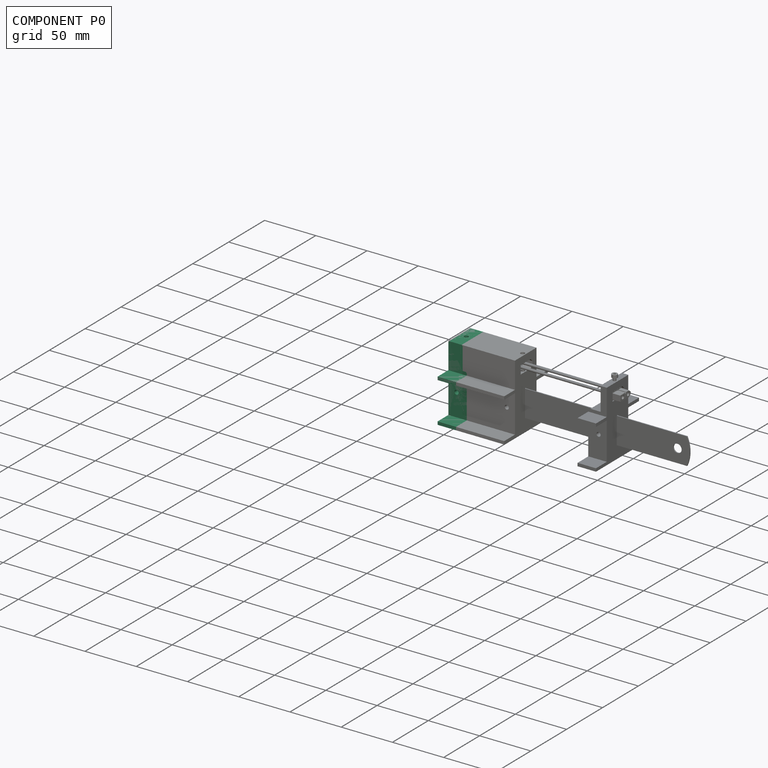
[diagram: component P0 — assembled]
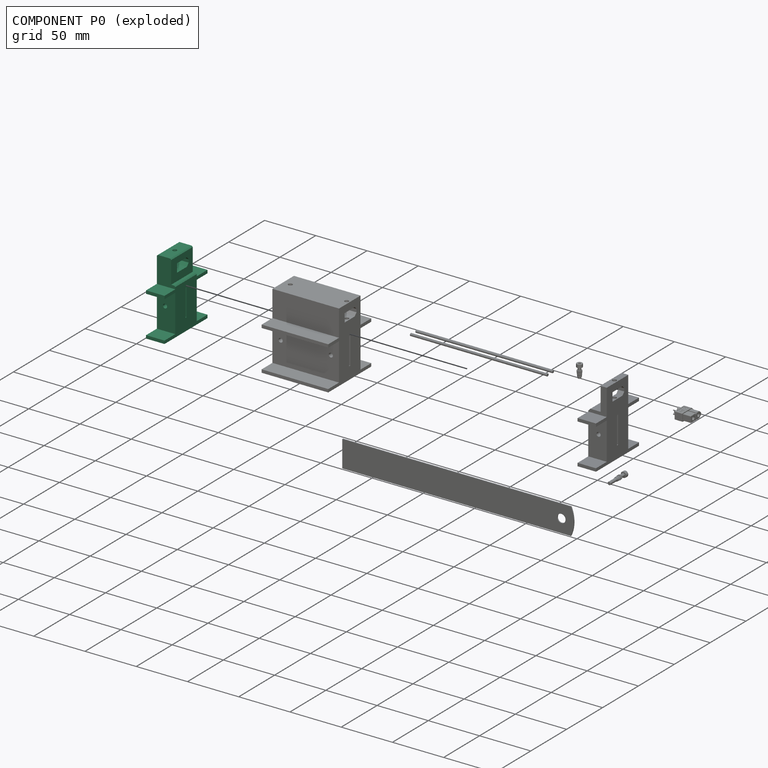
[diagram: component P0 — exploded]
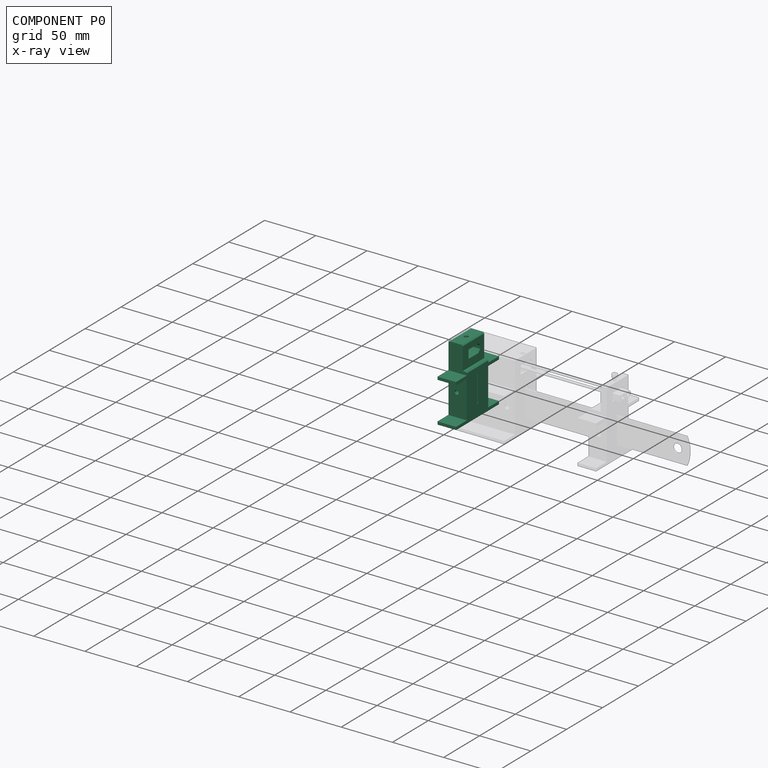
[diagram: component P0 — x-ray view]
COMPONENT P0 — recipe-attached ("outillageFem", modeled in this document).
Held by: resting contact with P4 (derived edge); resting contact with P5 (derived edge); resting contact with P7 (derived edge).
Construction recipe (the document's own serialized feature program — sketch geometry with constraints, then the solid features built on it; lengths are millimeters unless a unit is written):

FEATURE [PartDesign::FeatureBase] Clone
  BaseFeature = -> Slice_child0
FEATURE [PartDesign::Chamfer] Chamfer
  Angle = 45
  Base = -> Clone [Edge45]
  BaseFeature = -> Clone
  ChamferType = 0
  FlipDirection = false
  Size = 1
  Size2 = 1
  SupportTransform = false
FEATURE [PartDesign::Chamfer] Chamfer001
  Angle = 45
  Base = -> Chamfer [Edge77,Edge84]
  BaseFeature = -> Chamfer
  ChamferType = 0
  FlipDirection = false
  Size = 1
  Size2 = 1
  SupportTransform = false
FEATURE [PartDesign::Body] Body004  label="outillageFem"
  BaseFeature = -> Slice_child0
  Group = -> [Clone,Chamfer,Chamfer001]
  Origin = -> Origin009
  Tip = -> Chamfer001
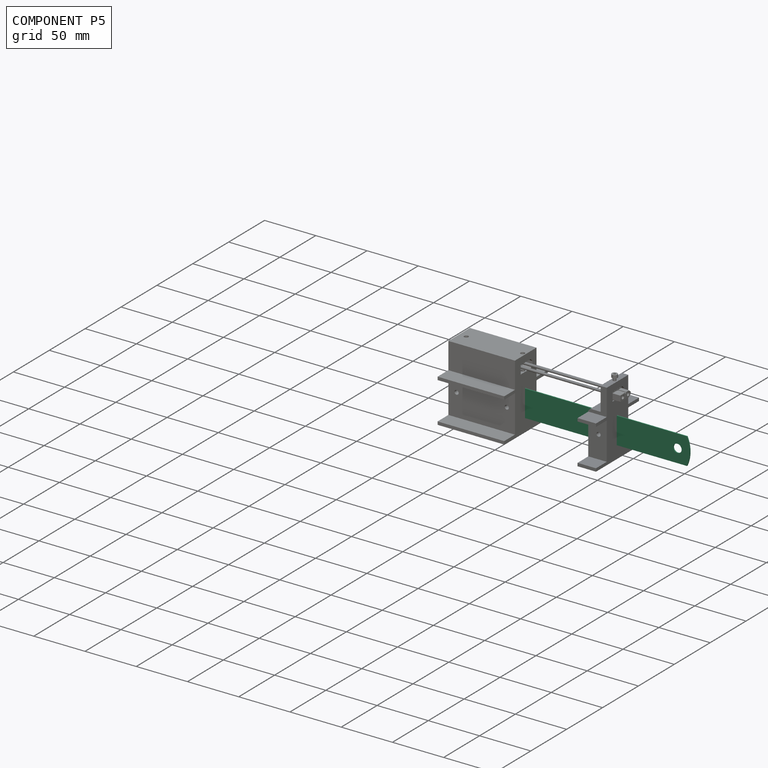
[diagram: component P5 — assembled]
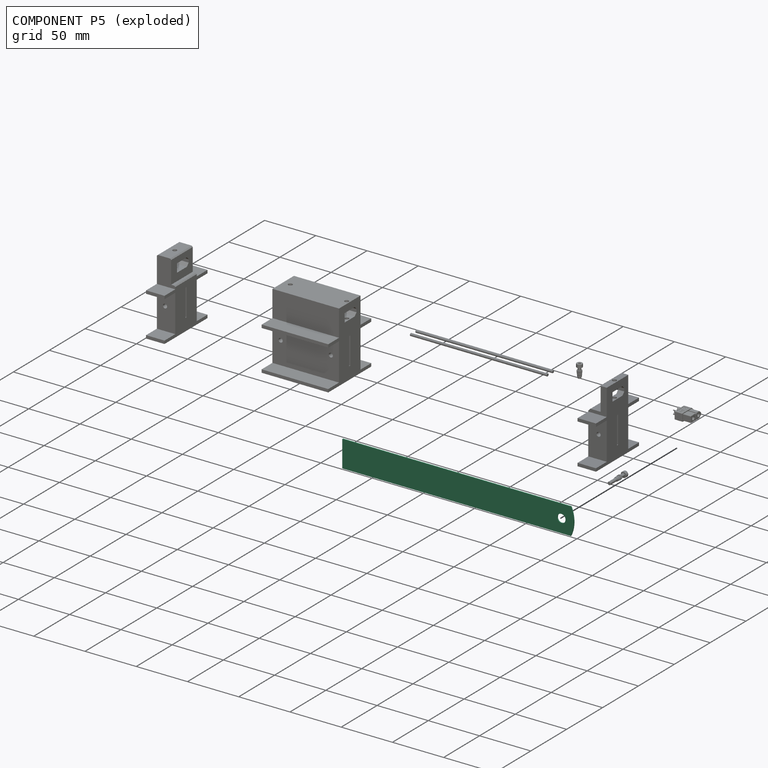
[diagram: component P5 — exploded]
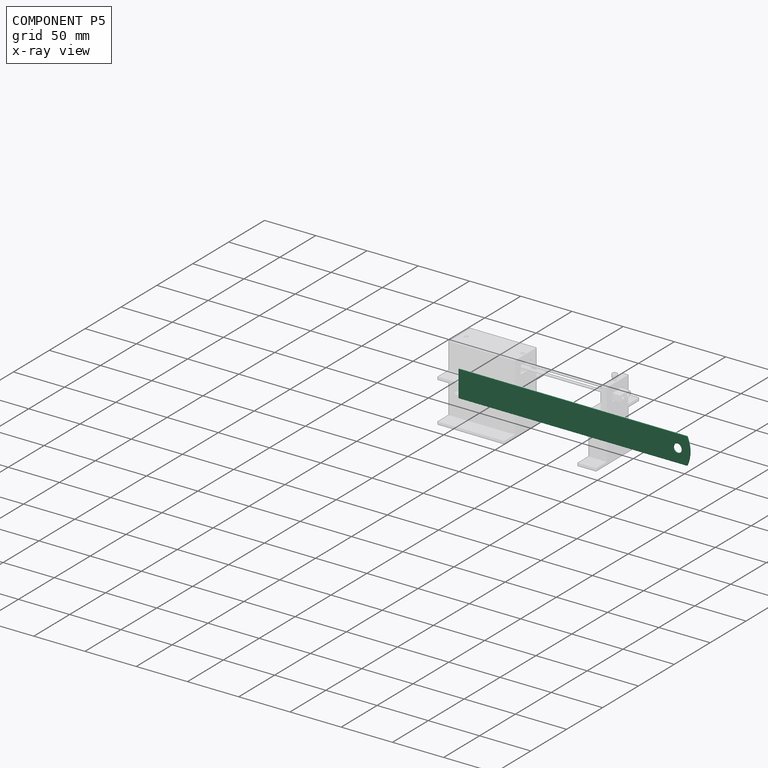
[diagram: component P5 — x-ray view]
COMPONENT P5 — recipe-attached ("reglet", modeled in this document).
Held by: resting contact with P0 (derived edge); resting contact with P4 (derived edge).
Construction recipe (the document's own serialized feature program — sketch geometry with constraints, then the solid features built on it; lengths are millimeters unless a unit is written):

FEATURE [Sketcher::SketchObject] Sketch
  FullyConstrained = true
  MapMode = 5
  Support = -> [XY_Plane003]
  expr: Constraints[8] = <<regletSp>>.larg
  expr: Constraints[9] = <<regletSp>>.long
  expr: Constraints[10] = <<regletSp>>.trouDiam
  sketch-geometry (6):
    g0: Circle CenterX=213.8 CenterY=0 CenterZ=0 NormalX=0 NormalY=0 NormalZ=1 AngleXU=0 Radius=4.05
    g1: LineSegment StartX=223.054 StartY=13 StartZ=0 EndX=0 EndY=13 EndZ=0
    g2: LineSegment StartX=0 StartY=13 StartZ=0 EndX=0 EndY=-13 EndZ=0
    g3: LineSegment StartX=0 StartY=-13 StartZ=0 EndX=223.054 EndY=-13 EndZ=0
    g4: LineSegment StartX=223.054 StartY=13 StartZ=0 EndX=223.054 EndY=-13 EndZ=0
    g5: ArcOfCircle CenterX=194.68 CenterY=-5.5e-15 CenterZ=0 NormalX=0 NormalY=0 NormalZ=1 AngleXU=0 Radius=31.21 StartAngle=5.85356 EndAngle=6.71281
  constraints (17):
    c: PointOnObject(g0,g-1)
    c: Horizontal(g1)
    c: Coincident(g1,g2)
    c: Vertical(g2)
    c: Coincident(g2,g3)
    c: Horizontal(g3)
    c: Symmetric(g2,g1,g-1)
    c: Vertical(g4)
    c: DistanceY(g2,g2) = 26
    c: DistanceX(g2,g0) = 213.8
    c: Diameter(g0) = 8.1
    c: Coincident(g1,g4)
    c: Coincident(g3,g4)
    c: Coincident(g5,g1)
    c: Coincident(g5,g3)
    c: DistanceX(g-1,g5) = 194.68
    c: Diameter(g5) = 62.42
FEATURE [PartDesign::Pad] Pad
  Direction = (1,1,1)
  Length = 1
  Length2 = 100
  Profile = -> Sketch
  Type = 0
  expr: Length = <<regletSp>>.ep
FEATURE [PartDesign::Body] Body001  label="regletBdy"
  Group = -> [Sketch,Pad]
  Origin = -> Origin003
  Tip = -> Pad
PROVENANCE & LICENSES
Assembly and component geometry: a FreeCAD (.FCStd) document from a public repository crawl; components, placements and joints were extracted with FreeCAD and each solid tessellated.
Construction recipes: the document's own serialized feature recipes (and, for linked parts, the recipes of companion documents from the same project).
License: as declared in the source repository (recorded in the dataset sidecar).
Joints: native FreeCAD joints and A2plus constraints are mapped to standard mate types; edges marked 'derived from contact' connect touching components and are measured from the geometry, not modeled.
Verification: 8 of this assembly's 8 components carry a construction recipe (8 from this document itself); the rest are geometry-only. Every component's tessellation passed the extraction mesh gates (mesh-volume checksum against the B-rep where available, bounding-box inflation <= 2%).
Renders: orthographic iso camera (az 35 / el 25); the floor grid conveys scale (grid pitch printed in each image; no ruler). In the exploded view each component is displaced by its stored offset vector: the offsets alone carry the explosion direction (mate normal/axis signs are not orientation cues and do not encode it), and separation distances are assigned per mate-chain, not proportionally to assembly-order depth.
